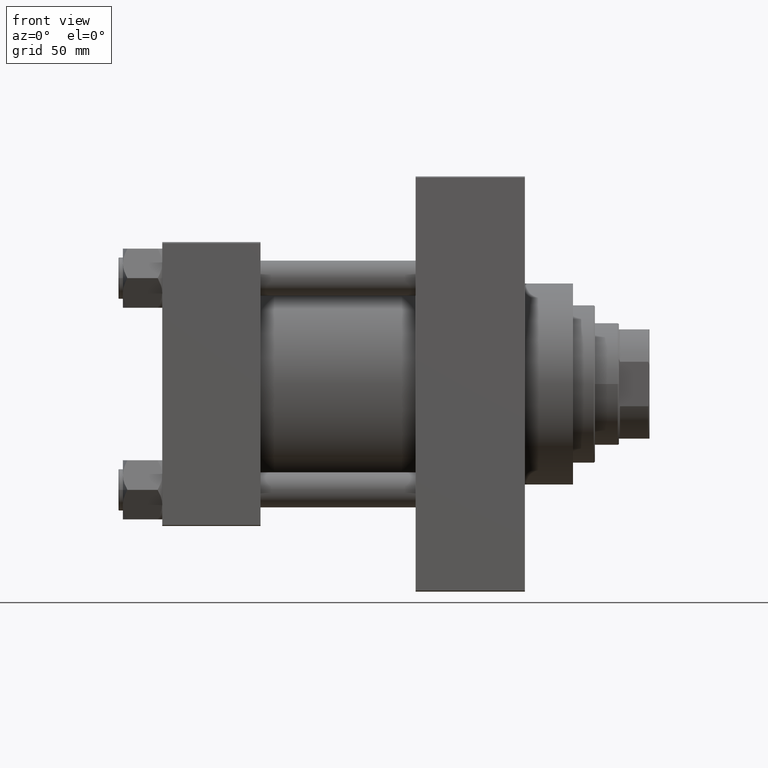
[diagram: clean part render]
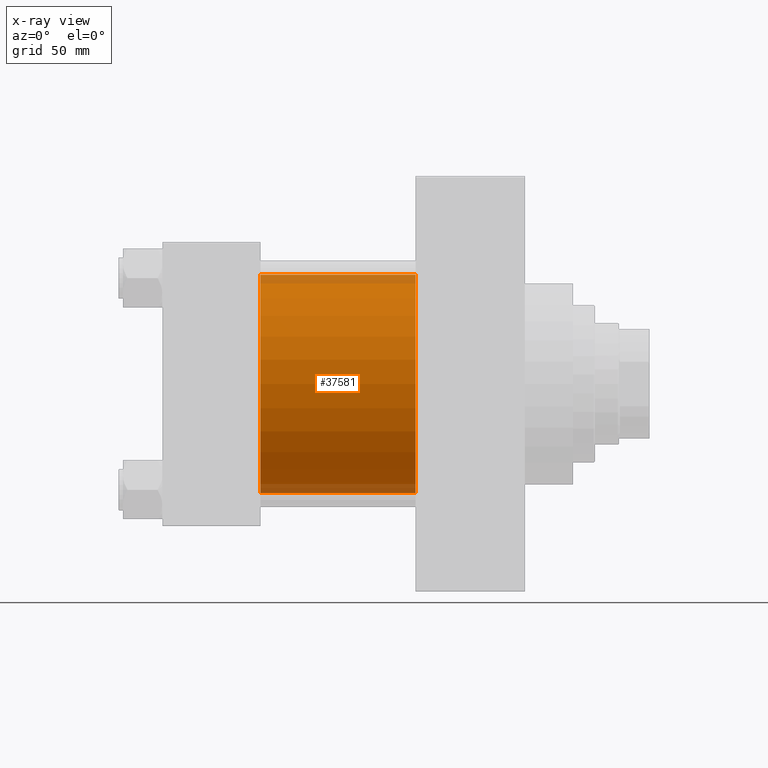
[diagram: x-ray — body ghosted, one internal face saturated and labeled with its STEP entity id]
A machine part, front view, then the same camera in x-ray: the body is ghosted and one INTERNAL B-rep face — a face not visible from any outside direction — is saturated and labeled: STEP entity #37581.
In plain terms, the highlighted cylindrical surface (partial cylindrical patch) has radius 50 mm, axis along (-1, -0, -0).
Its self-contained STEP definition (entity closure, byte-faithful):
#469 = VERTEX_POINT ( 'NONE', #10717 ) ;
#561 = EDGE_CURVE ( 'NONE', #469, #12292, #8283, .T. ) ;
#4833 = ORIENTED_EDGE ( 'NONE', *, *, #11766, .F. ) ;
#4921 = EDGE_CURVE ( 'NONE', #36511, #42208, #14368, .T. ) ;
#5317 = AXIS2_PLACEMENT_3D ( 'NONE', #7003, #36436, #7241 ) ;
#6158 = VECTOR ( 'NONE', #32464, 1000.000000000000000 ) ;
#6260 = CIRCLE ( 'NONE', #44054, 50.00000000000000000 ) ;
#7003 = CARTESIAN_POINT ( 'NONE',  ( 115.9999999999999858, -2.602085213965210642E-15, 0.000000000000000000 ) ) ;
#7241 = DIRECTION ( 'NONE',  ( 0.000000000000000000, 0.000000000000000000, 1.000000000000000000 ) ) ;
#7984 = AXIS2_PLACEMENT_3D ( 'NONE', #33975, #41468, #37841 ) ;
#8283 = LINE ( 'NONE', #34334, #27572 ) ;
#10717 = CARTESIAN_POINT ( 'NONE',  ( 115.9999999999999858, -2.602085213965210642E-15, 50.00000000000000000 ) ) ;
#11766 = EDGE_CURVE ( 'NONE', #12292, #42208, #6260, .T. ) ;
#12292 = VERTEX_POINT ( 'NONE', #34769 ) ;
#14368 = LINE ( 'NONE', #43816, #6158 ) ;
#16202 = EDGE_CURVE ( 'NONE', #469, #36511, #32621, .T. ) ;
#18322 = ORIENTED_EDGE ( 'NONE', *, *, #4921, .T. ) ;
#18384 = CARTESIAN_POINT ( 'NONE',  ( 45.00000000000000000, 3.521148781771555838E-15, -50.00000000000000000 ) ) ;
#19533 = ORIENTED_EDGE ( 'NONE', *, *, #561, .F. ) ;
#27572 = VECTOR ( 'NONE', #30244, 1000.000000000000000 ) ;
#27651 = ORIENTED_EDGE ( 'NONE', *, *, #16202, .T. ) ;
#30244 = DIRECTION ( 'NONE',  ( -1.000000000000000000, -0.000000000000000000, -0.000000000000000000 ) ) ;
#31258 = DIRECTION ( 'NONE',  ( 0.000000000000000000, 0.000000000000000000, -1.000000000000000000 ) ) ;
#31746 = CARTESIAN_POINT ( 'NONE',  ( 45.00000000000000000, -2.602085213965210642E-15, 0.000000000000000000 ) ) ;
#32464 = DIRECTION ( 'NONE',  ( -1.000000000000000000, -0.000000000000000000, -0.000000000000000000 ) ) ;
#32621 = CIRCLE ( 'NONE', #7984, 50.00000000000000000 ) ;
#33975 = CARTESIAN_POINT ( 'NONE',  ( 115.9999999999999858, -2.602085213965210642E-15, 0.000000000000000000 ) ) ;
#34334 = CARTESIAN_POINT ( 'NONE',  ( 115.9999999999999858, -2.602085213965210642E-15, 50.00000000000000000 ) ) ;
#34769 = CARTESIAN_POINT ( 'NONE',  ( 45.00000000000000000, -2.602085213965210642E-15, 50.00000000000000000 ) ) ;
#36436 = DIRECTION ( 'NONE',  ( -1.000000000000000000, -0.000000000000000000, -0.000000000000000000 ) ) ;
#36511 = VERTEX_POINT ( 'NONE', #36907 ) ;
#36907 = CARTESIAN_POINT ( 'NONE',  ( 115.9999999999999858, 3.521148781771555838E-15, -50.00000000000000000 ) ) ;
#36917 = FACE_OUTER_BOUND ( 'NONE', #46741, .T. ) ;
#37581 = ADVANCED_FACE ( 'NONE', ( #36917 ), #40062, .F. ) ;
#37841 = DIRECTION ( 'NONE',  ( 0.000000000000000000, 0.000000000000000000, -1.000000000000000000 ) ) ;
#40062 = CYLINDRICAL_SURFACE ( 'NONE', #5317, 50.00000000000000000 ) ;
#41468 = DIRECTION ( 'NONE',  ( 1.000000000000000000, 0.000000000000000000, 0.000000000000000000 ) ) ;
#42208 = VERTEX_POINT ( 'NONE', #18384 ) ;
#43816 = CARTESIAN_POINT ( 'NONE',  ( 115.9999999999999858, 3.521148781771555838E-15, -50.00000000000000000 ) ) ;
#44054 = AXIS2_PLACEMENT_3D ( 'NONE', #31746, #45534, #31258 ) ;
#45534 = DIRECTION ( 'NONE',  ( 1.000000000000000000, 0.000000000000000000, 0.000000000000000000 ) ) ;
#46741 = EDGE_LOOP ( 'NONE', ( #27651, #18322, #4833, #19533 ) ) ;